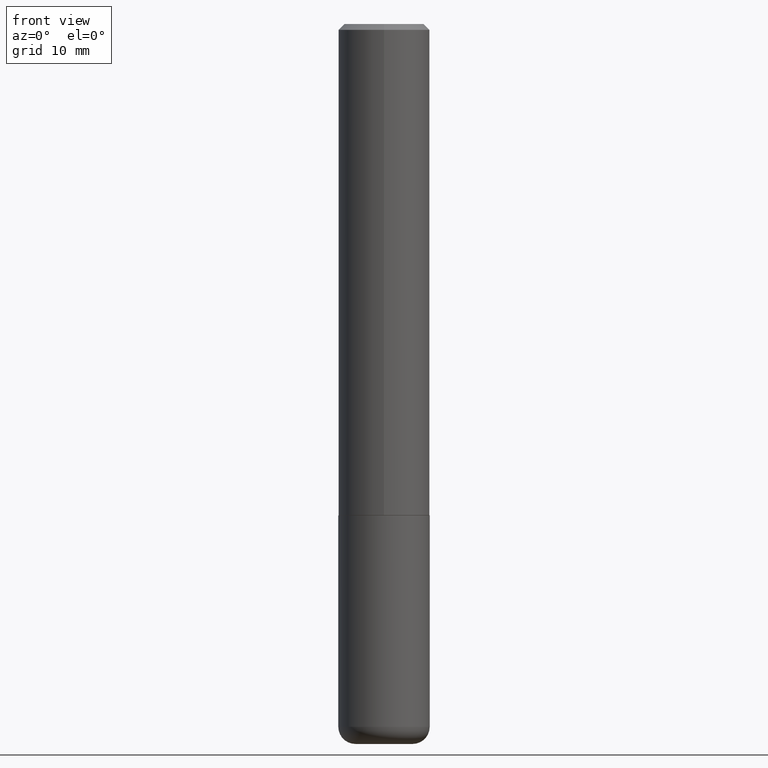
[diagram: clean part render]
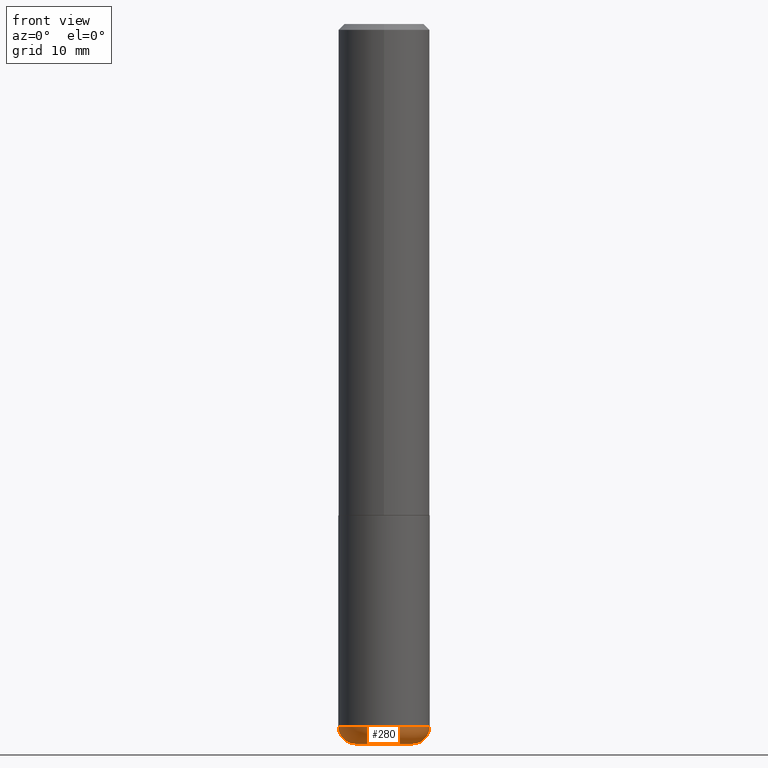
[diagram: same view with one face highlighted and labeled with its STEP entity id]
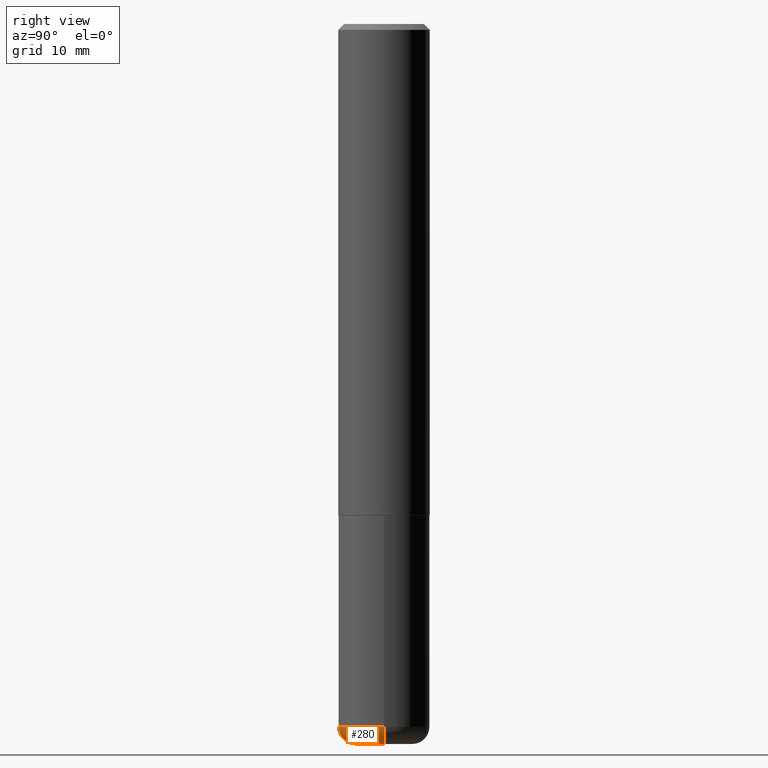
[diagram: same view with one face highlighted and labeled with its STEP entity id]
A machine part, front view. The second image highlights one B-rep face of the part: STEP entity #280.
A second angle (right view) of the same face is appended — the face is thin or edge-on in the first view.
In plain terms, the highlighted toroidal blend (fillet) surface has major radius 2.4994 mm and minor (blend) radius 1.5011 mm.
Its self-contained STEP definition (entity closure, byte-faithful):
#3 = AXIS2_PLACEMENT_3D ( 'NONE', #408, #248, #220 ) ;
#17 = DIRECTION ( 'NONE',  ( -2.445468806185136597E-29, 3.491481338843145583E-15, 1.000000000000000000 ) ) ;
#29 = CIRCLE ( 'NONE', #233, 0.09840000000000000135 ) ;
#35 = EDGE_CURVE ( 'NONE', #43, #208, #29, .T. ) ;
#43 = VERTEX_POINT ( 'NONE', #157 ) ;
#45 = CARTESIAN_POINT ( 'NONE',  ( -0.1574999999999999456, -7.334469808784867333E-15, -2.421200000000000241 ) ) ;
#48 = CARTESIAN_POINT ( 'NONE',  ( 0.09840000000000000135, -9.347044692216982806E-15, -2.480300000000000171 ) ) ;
#60 = CARTESIAN_POINT ( 'NONE',  ( 6.065496279980994755E-29, -8.659921164732655335E-15, -2.480300000000000171 ) ) ;
#73 = EDGE_CURVE ( 'NONE', #107, #239, #350, .T. ) ;
#82 = DIRECTION ( 'NONE',  ( 1.000000000000000000, -6.982962677686269866E-15, 4.883557194083114022E-29 ) ) ;
#95 = DIRECTION ( 'NONE',  ( 7.105427357601001859E-15, 1.000000000000000000, -3.491481338843145583E-15 ) ) ;
#107 = VERTEX_POINT ( 'NONE', #45 ) ;
#108 = TOROIDAL_SURFACE ( 'NONE', #353, 0.09840000000000000135, 0.05909999999999995812 ) ;
#146 = CARTESIAN_POINT ( 'NONE',  ( 5.920969073535453422E-29, -8.453574617607024936E-15, -2.421200000000000241 ) ) ;
#156 = DIRECTION ( 'NONE',  ( 1.000000000000000000, -6.982962677686266711E-15, 0.000000000000000000 ) ) ;
#157 = CARTESIAN_POINT ( 'NONE',  ( -0.09840000000000000135, -7.647608460764791890E-15, -2.480300000000000171 ) ) ;
#177 = DIRECTION ( 'NONE',  ( -2.445468806185136597E-29, 3.491481338843145583E-15, 1.000000000000000000 ) ) ;
#205 = EDGE_CURVE ( 'NONE', #208, #239, #282, .T. ) ;
#208 = VERTEX_POINT ( 'NONE', #48 ) ;
#212 = ORIENTED_EDGE ( 'NONE', *, *, #35, .T. ) ;
#220 = DIRECTION ( 'NONE',  ( 1.000000000000000000, -6.982962677686268288E-15, 0.000000000000000000 ) ) ;
#222 = CARTESIAN_POINT ( 'NONE',  ( -0.09840000000000000135, -7.754400565619087626E-15, -2.421200000000000241 ) ) ;
#233 = AXIS2_PLACEMENT_3D ( 'NONE', #60, #17, #341 ) ;
#239 = VERTEX_POINT ( 'NONE', #321 ) ;
#248 = DIRECTION ( 'NONE',  ( -2.445468806185136597E-29, 3.491481338843145583E-15, 1.000000000000000000 ) ) ;
#256 = DIRECTION ( 'NONE',  ( -1.000000000000000000, 7.105427357600997914E-15, 0.000000000000000000 ) ) ;
#260 = AXIS2_PLACEMENT_3D ( 'NONE', #305, #297, #156 ) ;
#280 = ADVANCED_FACE ( 'NONE', ( #372 ), #108, .T. ) ;
#282 = CIRCLE ( 'NONE', #260, 0.05909999999999995812 ) ;
#294 = ORIENTED_EDGE ( 'NONE', *, *, #205, .T. ) ;
#297 = DIRECTION ( 'NONE',  ( -6.982962677686266711E-15, -1.000000000000000000, 3.491481338843145583E-15 ) ) ;
#305 = CARTESIAN_POINT ( 'NONE',  ( 0.09840000000000000135, -9.140698145091353984E-15, -2.421200000000000241 ) ) ;
#321 = CARTESIAN_POINT ( 'NONE',  ( 0.1574999999999999456, -9.553391239342613205E-15, -2.421200000000000241 ) ) ;
#326 = ORIENTED_EDGE ( 'NONE', *, *, #73, .F. ) ;
#336 = EDGE_LOOP ( 'NONE', ( #368, #212, #294, #326 ) ) ;
#341 = DIRECTION ( 'NONE',  ( 1.000000000000000000, -6.982962677686261977E-15, 0.000000000000000000 ) ) ;
#350 = CIRCLE ( 'NONE', #3, 0.1575000000000000011 ) ;
#353 = AXIS2_PLACEMENT_3D ( 'NONE', #146, #177, #82 ) ;
#368 = ORIENTED_EDGE ( 'NONE', *, *, #386, .F. ) ;
#372 = FACE_OUTER_BOUND ( 'NONE', #336, .T. ) ;
#386 = EDGE_CURVE ( 'NONE', #43, #107, #391, .T. ) ;
#391 = CIRCLE ( 'NONE', #416, 0.05909999999999995812 ) ;
#408 = CARTESIAN_POINT ( 'NONE',  ( 5.920969073535453422E-29, -8.453574617607024936E-15, -2.421200000000000241 ) ) ;
#416 = AXIS2_PLACEMENT_3D ( 'NONE', #222, #95, #256 ) ;